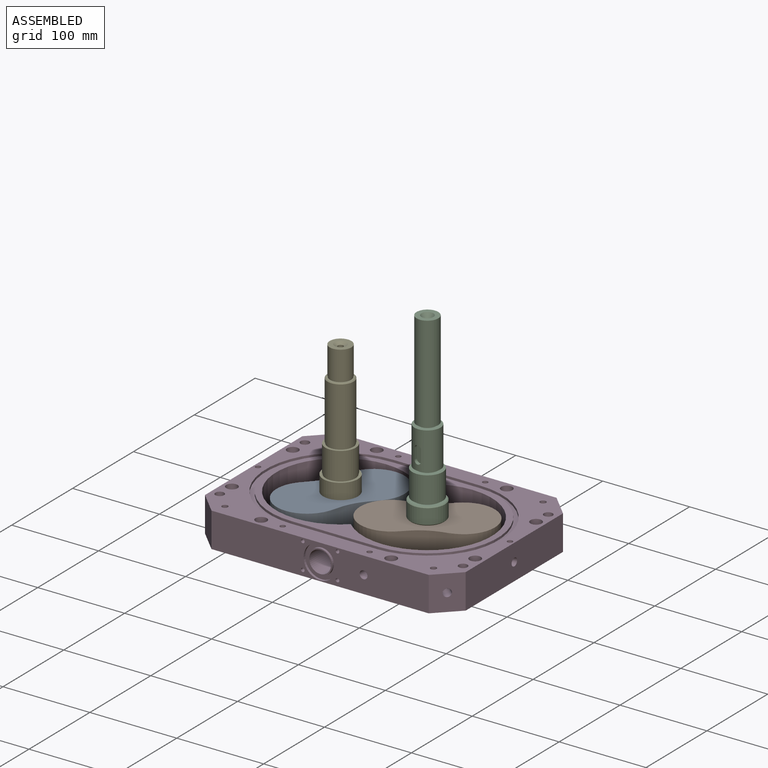
[diagram: assembled view]
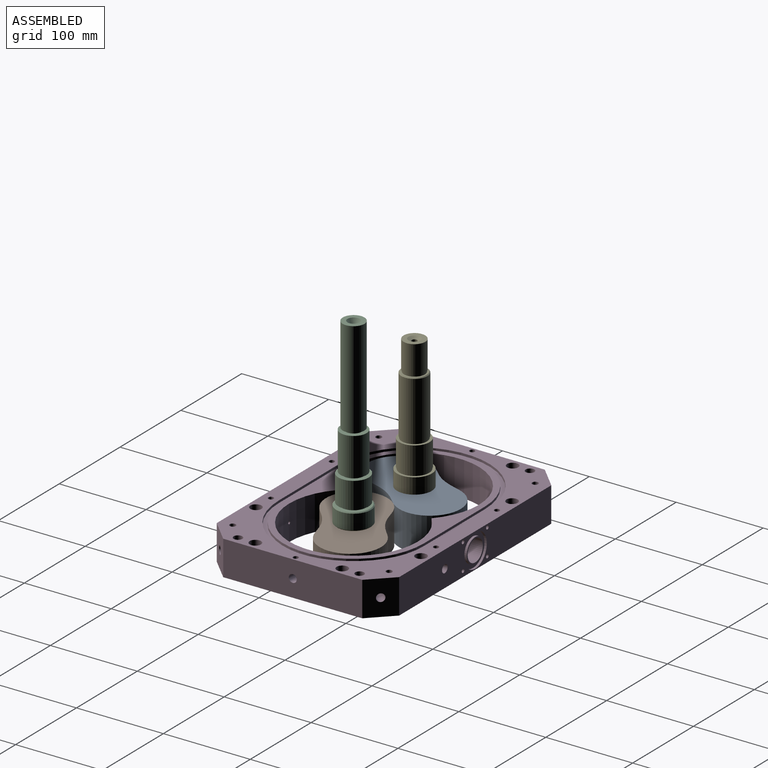
[diagram: assembled view, second angle]
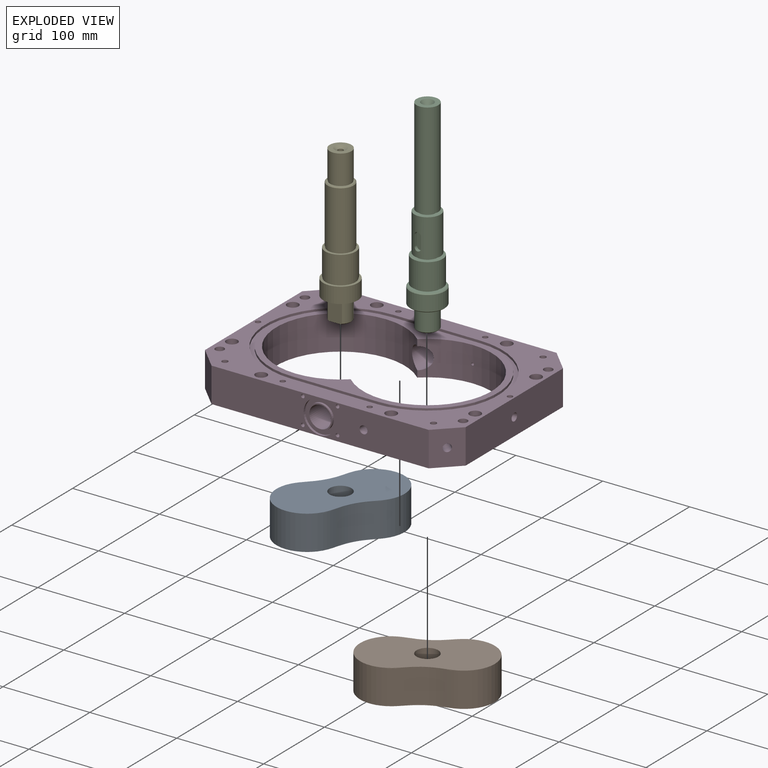
[diagram: exploded view]
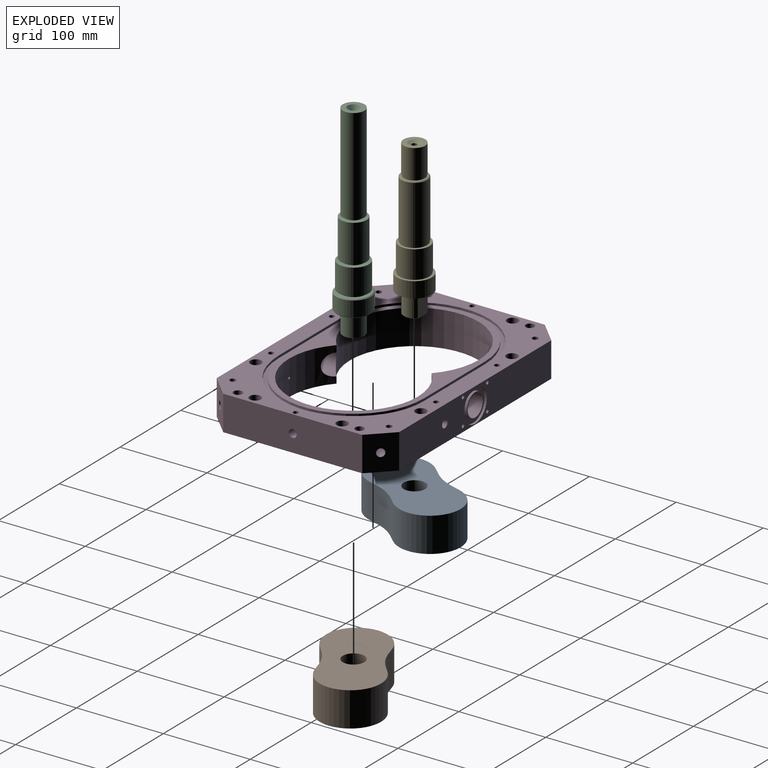
[diagram: exploded view, second angle]
ASSEMBLY  parts=5 mates=6
PART A: 11 faces, bbox 71x40x140.2 mm
  f0: cylinder r=12.5mm len=25mm, axis (0,1,0), area 1955.6mm2, adj f1,f2
  f1: plane 25x25mm, normal (0,-1,0), area 412.3mm2, adj f0,f3
  f2: plane 140.25x71.05mm, normal (0,-1,0), area 7945.2mm2, adj f0,f4,f5,f6,f7
  f3: cylinder r=5mm len=10mm, axis (0,1,0), area 153.9mm2, adj f1,f8
  f4: cylinder r=35.36mm len=70.71mm, axis (0,1,0), area 4366.9mm2, adj f2,f5,f7,f9
  f5: extruded ~70.68x39.8mm, area 2854.2mm2, adj f2,f4,f6,f9
  f6: cylinder r=35.36mm len=70.71mm, axis (0,1,0), area 4364.4mm2, adj f2,f5,f7,f9
  f7: extruded ~70.68x39.8mm, area 2854.2mm2, adj f2,f4,f6,f9
  f8: plane 20x20mm, normal (0,1,0), area 235.6mm2, adj f3,f10
  f9: plane 140.25x71.05mm, normal (0,1,0), area 8121.9mm2, adj f4,f5,f6,f7,f10
  f10: cylinder r=10mm len=20mm, axis (0,1,0), area 628.3mm2, adj f8,f9
PART B: same geometry as A
PART C: 33 faces, bbox 235x40x40 mm
  f0: cone r=0mm half-angle=27.5deg, axis (-1,0,0), area 78.7mm2, adj f1
  f1: cylinder r=3.4mm len=19.75mm, axis (-1,0,0), area 421.9mm2, adj f0,f2
  f2: plane 23x23mm, normal (-1,0,0), area 379.2mm2, adj f1,f3
  f3: cone r=0mm half-angle=45deg, axis (1,0,0), area 106.6mm2, adj f2,f4
  f4: cylinder r=12.5mm len=25mm, axis (-1,0,0), area 1727.9mm2, adj f3,f5
  f5: plane 25x25mm, normal (1,0,0), area 207.3mm2, adj f4,f6
  f6: cylinder r=9.5mm len=19mm, axis (-1,0,0), area 119.4mm2, adj f5,f7
  f7: plane 38x38mm, normal (-1,0,0), area 850.6mm2, adj f6,f8
  f8: cone r=0mm half-angle=45deg, axis (1,0,0), area 173.3mm2, adj f7,f9
  f9: cylinder r=20mm len=40mm, axis (-1,0,0), area 2199.1mm2, adj f8,f10
  f10: cone r=0mm half-angle=45deg, axis (-1,0,0), area 173.3mm2, adj f9,f12
  f11: cone r=0mm half-angle=59deg, axis (1,0,0), area 36.4mm2, adj f13,f14
  f12: plane 38x38mm, normal (1,0,0), area 473.6mm2, adj f10,f15
  f13: cylinder r=3.15mm len=6.3mm, axis (1,0,0), area 52.8mm2, adj f11,f14,f16
  f14: cylinder r=3.15mm len=6.3mm, axis (1,0,0), area 52.8mm2, adj f11,f13,f16
  f15: cylinder r=14.5mm len=29mm, axis (-1,0,0), area 182.2mm2, adj f12,f17
  f16: cone r=0mm half-angle=30deg, axis (1,0,0), area 245.5mm2, adj f13,f14,f18
  f17: plane 35x35mm, normal (-1,0,0), area 301.6mm2, adj f15,f19
  f18: plane 25x25mm, normal (1,0,0), area 336.9mm2, adj f16,f20
  f19: cylinder r=17.5mm len=35mm, axis (-1,0,0), area 3298.7mm2, adj f17,f21
  f20: cylinder r=12.5mm len=111mm, axis (-1,0,0), area 8717.9mm2, adj f18,f22
  f21: plane 35x35mm, normal (1,0,0), area 509.7mm2, adj f19,f23
  f22: plane 25x25mm, normal (-1,0,0), area 207.3mm2, adj f20,f24
  f23: cylinder r=12mm len=24mm, axis (-1,0,0), area 150.8mm2, adj f21,f26
  f24: cylinder r=9.5mm len=19mm, axis (-1,0,0), area 119.4mm2, adj f22,f27
  f25: plane 12x3.46mm, normal (0,0,1), area 41.5mm2, adj f28,f29,f30,f32
  f26: plane 30x30mm, normal (-1,0,0), area 254.5mm2, adj f23,f30
  f27: plane 30x30mm, normal (1,0,0), area 423.3mm2, adj f24,f30
  f28: cylinder r=4mm len=8mm, axis (0,-1,0), area 46.9mm2, adj f25,f29,f30,f31
  f29: plane 20x8mm, normal (0,-1,0), area 146.3mm2, adj f25,f28,f31,f32
  f30: cylinder r=15mm len=43.5mm, axis (-1,0,0), area 3951.9mm2, adj f25,f26,f27,f28,f31,f32
  f31: plane 12x3.46mm, normal (0,0,-1), area 41.5mm2, adj f28,f29,f30,f32
  f32: cylinder r=4mm len=8mm, axis (0,-1,0), area 46.9mm2, adj f25,f29,f30,f31
PART D: 123 faces, bbox 300x210x40 mm
  f0: plane 28x28mm, normal (0,-1,0), area 124.9mm2, adj f2,f4
  f1: plane 28x28mm, normal (0,1,0), area 124.9mm2, adj f3,f10
  f2: cylinder r=14mm len=28mm, axis (0,-1,0), area 237.5mm2, adj f0,f15
  f3: cylinder r=12.5mm len=50.34mm, axis (0,-1,0), area 3470.7mm2, adj f1,f5,f63
  f4: cylinder r=12.5mm len=50.34mm, axis (0,-1,0), area 3470.6mm2, adj f0,f5,f63
  f5: cylinder r=74.08mm len=148.16mm, axis (0,0,-1), area 13081.7mm2, adj f3,f4,f25,f27,f63
  f6: plane 100x2.7mm, normal (0,-1,0), area 270mm2, adj f7,f9,f25,f34
  f7: cylinder r=81mm len=162mm, axis (0,0,1), area 687.1mm2, adj f6,f8,f25,f34
  f8: plane 100x2.7mm, normal (0,1,0), area 270mm2, adj f7,f9,f25,f34
  f9: cylinder r=81mm len=162mm, axis (0,0,1), area 687.1mm2, adj f6,f8,f25,f34
  f10: cylinder r=14mm len=28mm, axis (0,1,0), area 237.5mm2, adj f1,f46
  f11: cone r=0mm half-angle=27.5deg, axis (0,-1,0), area 125.3mm2, adj f28,f47
  f12: cone r=0mm half-angle=59deg, axis (0,-1,0), area 16.2mm2, adj f48
  f13: cone r=0mm half-angle=59deg, axis (0,-1,0), area 16.2mm2, adj f49
  f14: cone r=0mm half-angle=59deg, axis (0,-1,0), area 16.2mm2, adj f50
  f15: plane 38x38mm, normal (0,-1,0), area 518.4mm2, adj f2,f51
  f16: cone r=0mm half-angle=59deg, axis (0,-1,0), area 16.2mm2, adj f52
  f17: cone r=0mm half-angle=27.5deg, axis (0.71,-0.71,0), area 62.7mm2, adj f18,f23,f53
  f18: cone r=0mm half-angle=27.5deg, axis (0.71,-0.71,0), area 62.7mm2, adj f17,f23,f53
  f19: plane 100x2.7mm, normal (0,-1,0), area 270mm2, adj f20,f22,f27,f62
  f20: cylinder r=81mm len=162mm, axis (0,0,-1), area 687.1mm2, adj f19,f21,f27,f62
  f21: plane 100x2.7mm, normal (0,1,0), area 270mm2, adj f20,f22,f27,f62
  f22: cylinder r=81mm len=162mm, axis (0,0,-1), area 687.1mm2, adj f19,f21,f27,f62
  f23: cylinder r=1.5mm len=28.65mm, axis (0.71,-0.71,0), area 352.9mm2, adj f17,f18,f63
  f24: cylinder r=1.5mm len=10.08mm, axis (1,0,0), area 95mm2, adj f29,f63
  f25: plane 262x162mm, normal (0,0,1), area 5973.5mm2, adj f5,f6,f7,f8,f9,f63
  f26: cylinder r=1.5mm len=15.08mm, axis (0,1,0), area 142.1mm2, adj f41,f63
  f27: plane 262x162mm, normal (0,0,-1), area 5973.5mm2, adj f5,f19,f20,f21,f22,f63
  f28: cylinder r=1.5mm len=15.08mm, axis (0,-1,0), area 142.1mm2, adj f11,f63
  f29: cone r=0mm half-angle=27.5deg, axis (1,0,0), area 125.3mm2, adj f24,f64
  f30: cone r=0mm half-angle=59deg, axis (0,0,1), area 42.4mm2, adj f73
  f31: cone r=0mm half-angle=59deg, axis (0,0,1), area 42.4mm2, adj f74
  f32: cone r=0mm half-angle=59deg, axis (0,0,1), area 42.4mm2, adj f75
  f33: cone r=0mm half-angle=59deg, axis (0,0,1), area 42.4mm2, adj f76
  f34: plane 272x172mm, normal (0,0,1), area 3623.2mm2, adj f6,f7,f8,f9,f77,f78,f79,f80
  f35: plane 6x6mm, normal (0,0,1), area 28.3mm2, adj f81
  f36: plane 6x6mm, normal (0,0,1), area 28.3mm2, adj f82
  f37: plane 6x6mm, normal (0,0,1), area 28.3mm2, adj f83
  f38: plane 6x6mm, normal (0,0,1), area 28.3mm2, adj f84
  f39: plane 6x6mm, normal (0,0,1), area 28.3mm2, adj f85
  f40: plane 6x6mm, normal (0,0,1), area 28.3mm2, adj f86
  f41: cone r=0mm half-angle=27.5deg, axis (0,1,0), area 125.3mm2, adj f26,f87
  f42: cone r=0mm half-angle=59deg, axis (0,1,0), area 16.2mm2, adj f88
  f43: cone r=0mm half-angle=59deg, axis (0,1,0), area 16.2mm2, adj f89
  f44: cone r=0mm half-angle=59deg, axis (0,1,0), area 16.2mm2, adj f90
  f45: cone r=0mm half-angle=59deg, axis (0,1,0), area 16.2mm2, adj f91
  f46: plane 38x38mm, normal (0,1,0), area 518.4mm2, adj f10,f92
  f47: cylinder r=4.55mm len=10mm, axis (0,-1,0), area 285.7mm2, adj f11,f96
  f48: cylinder r=2.1mm len=10mm, axis (0,-1,0), area 131.9mm2, adj f12,f96
  f49: cylinder r=2.1mm len=10mm, axis (0,-1,0), area 131.9mm2, adj f13,f96
  f50: cylinder r=2.1mm len=10mm, axis (0,-1,0), area 131.9mm2, adj f14,f96
  f51: cylinder r=19mm len=38mm, axis (0,-1,0), area 322.3mm2, adj f15,f96
  f52: cylinder r=2.1mm len=10mm, axis (0,-1,0), area 131.9mm2, adj f16,f96
  f53: cylinder r=4.55mm len=13.5mm, axis (0.71,-0.71,0), area 285.7mm2, adj f17,f18,f97
  f54: plane 13x13mm, normal (0,0,1), area 76mm2, adj f65,f102
  f55: plane 13x13mm, normal (0,0,1), area 76mm2, adj f66,f103
  f56: plane 13x13mm, normal (0,0,1), area 76mm2, adj f67,f104
  f57: plane 13x13mm, normal (0,0,1), area 76mm2, adj f68,f105
  f58: plane 13x13mm, normal (0,0,1), area 76mm2, adj f69,f106
  f59: plane 13x13mm, normal (0,0,1), area 76mm2, adj f70,f107
  f60: plane 13x13mm, normal (0,0,1), area 76mm2, adj f71,f108
  f61: plane 13x13mm, normal (0,0,1), area 76mm2, adj f72,f109
  f62: plane 272x172mm, normal (0,0,-1), area 3623.2mm2, adj f19,f20,f21,f22,f110,f111,f112,f113
  f63: cylinder r=74.08mm len=148.16mm, axis (0,0,-1), area 13046.4mm2, adj f3,f4,f5,f23,f24,f25,f26,f27
  f64: cylinder r=4.55mm len=10mm, axis (1,0,0), area 285.7mm2, adj f29,f115
  f65: cylinder r=6.5mm len=20mm, axis (0,0,1), area 816.8mm2, adj f54,f116
  f66: cylinder r=6.5mm len=20mm, axis (0,0,1), area 816.8mm2, adj f55,f116
  f67: cylinder r=6.5mm len=20mm, axis (0,0,1), area 816.8mm2, adj f56,f116
  f68: cylinder r=6.5mm len=20mm, axis (0,0,1), area 816.8mm2, adj f57,f116
  f69: cylinder r=6.5mm len=20mm, axis (0,0,1), area 816.8mm2, adj f58,f116
  f70: cylinder r=6.5mm len=20mm, axis (0,0,1), area 816.8mm2, adj f59,f116
  f71: cylinder r=6.5mm len=20mm, axis (0,0,1), area 816.8mm2, adj f60,f116
  f72: cylinder r=6.5mm len=20mm, axis (0,0,1), area 816.8mm2, adj f61,f116
  f73: cylinder r=3.4mm len=16mm, axis (0,0,1), area 341.8mm2, adj f30,f116
  f74: cylinder r=3.4mm len=16mm, axis (0,0,1), area 341.8mm2, adj f31,f116
  f75: cylinder r=3.4mm len=16mm, axis (0,0,1), area 341.8mm2, adj f32,f116
  f76: cylinder r=3.4mm len=16mm, axis (0,0,1), area 341.8mm2, adj f33,f116
  f77: cylinder r=86mm len=172mm, axis (0,0,1), area 729.5mm2, adj f34,f78,f80,f116
  f78: plane 100x2.7mm, normal (0,-1,0), area 270mm2, adj f34,f77,f79,f116
  f79: cylinder r=86mm len=172mm, axis (0,0,1), area 729.5mm2, adj f34,f78,f80,f116
  f80: plane 100x2.7mm, normal (0,1,0), area 270mm2, adj f34,f77,f79,f116
  f81: cylinder r=3mm len=10mm, axis (0,0,1), area 188.5mm2, adj f35,f116
  f82: cylinder r=3mm len=10mm, axis (0,0,1), area 188.5mm2, adj f36,f116
  f83: cylinder r=3mm len=10mm, axis (0,0,1), area 188.5mm2, adj f37,f116
  f84: cylinder r=3mm len=10mm, axis (0,0,1), area 188.5mm2, adj f38,f116
  f85: cylinder r=3mm len=10mm, axis (0,0,1), area 188.5mm2, adj f39,f116
  f86: cylinder r=3mm len=10mm, axis (0,0,1), area 188.5mm2, adj f40,f116
  f87: cylinder r=4.55mm len=10mm, axis (0,1,0), area 285.7mm2, adj f41,f117
  f88: cylinder r=2.1mm len=10mm, axis (0,1,0), area 131.9mm2, adj f42,f117
  f89: cylinder r=2.1mm len=10mm, axis (0,1,0), area 131.9mm2, adj f43,f117
  f90: cylinder r=2.1mm len=10mm, axis (0,1,0), area 131.9mm2, adj f44,f117
  f91: cylinder r=2.1mm len=10mm, axis (0,1,0), area 131.9mm2, adj f45,f117
  f92: cylinder r=19mm len=38mm, axis (0,1,0), area 322.3mm2, adj f46,f117
  f93: plane 40x25mm, normal (-0.71,0.71,0), area 1414.2mm2, adj f94,f116,f117,f118
  f94: plane 160x40mm, normal (-1,0,0), area 6400mm2, adj f93,f95,f116,f118
  f95: plane 40x25mm, normal (-0.71,-0.71,0), area 1414.2mm2, adj f94,f96,f116,f118
  f96: plane 250x40mm, normal (0,-1,0), area 8745.5mm2, adj f47,f48,f49,f50,f51,f52,f95,f97
  f97: plane 40x25mm, normal (0.71,-0.71,0), area 1349.3mm2, adj f53,f96,f115,f116,f118
  f98: cylinder r=5mm len=40mm, axis (0,0,1), area 1256.6mm2, adj f116,f118
  f99: cylinder r=5mm len=40mm, axis (0,0,1), area 1256.6mm2, adj f116,f118
  f100: cylinder r=5mm len=40mm, axis (0,0,1), area 1256.6mm2, adj f116,f118
  f101: cylinder r=5mm len=40mm, axis (0,0,1), area 1256.6mm2, adj f116,f118
  f102: cylinder r=4.25mm len=20mm, axis (0,0,1), area 534.1mm2, adj f54,f118
  f103: cylinder r=4.25mm len=20mm, axis (0,0,1), area 534.1mm2, adj f55,f118
  f104: cylinder r=4.25mm len=20mm, axis (0,0,1), area 534.1mm2, adj f56,f118
  f105: cylinder r=4.25mm len=20mm, axis (0,0,1), area 534.1mm2, adj f57,f118
  f106: cylinder r=4.25mm len=20mm, axis (0,0,1), area 534.1mm2, adj f58,f118
  f107: cylinder r=4.25mm len=20mm, axis (0,0,1), area 534.1mm2, adj f59,f118
  f108: cylinder r=4.25mm len=20mm, axis (0,0,1), area 534.1mm2, adj f60,f118
  f109: cylinder r=4.25mm len=20mm, axis (0,0,1), area 534.1mm2, adj f61,f118
  f110: cylinder r=86mm len=172mm, axis (0,0,-1), area 729.5mm2, adj f62,f111,f113,f118
  f111: plane 100x2.7mm, normal (0,1,0), area 270mm2, adj f62,f110,f112,f118
  f112: cylinder r=86mm len=172mm, axis (0,0,-1), area 729.5mm2, adj f62,f111,f113,f118
  f113: plane 100x2.7mm, normal (0,-1,0), area 270mm2, adj f62,f110,f112,f118
  f114: cylinder r=1.5mm len=28.65mm, axis (0.71,0.71,0), area 352.9mm2, adj f63,f119
  f115: plane 160x40mm, normal (1,0,0), area 6335.1mm2, adj f64,f97,f116,f118,f120
  f116: plane 300x210mm, normal (0,0,1), area 19623.8mm2, adj f65,f66,f67,f68,f69,f70,f71,f72
  f117: plane 250x40mm, normal (0,1,0), area 8745.5mm2, adj f87,f88,f89,f90,f91,f92,f93,f116
  f118: plane 300x210mm, normal (0,0,-1), area 20546.7mm2, adj f93,f94,f95,f96,f97,f98,f99,f100
  f119: cone r=0mm half-angle=27.5deg, axis (0.71,0.71,0), area 125.3mm2, adj f114,f121,f122
  f120: plane 40x25mm, normal (0.71,0.71,0), area 1349.3mm2, adj f115,f116,f117,f118,f121,f122
  f121: cylinder r=4.55mm len=13.5mm, axis (0.71,0.71,0), area 142.8mm2, adj f119,f120,f122
  f122: cylinder r=4.55mm len=13.5mm, axis (0.71,0.71,0), area 142.8mm2, adj f119,f120,f121
PART E: 33 faces, bbox 178x40x40 mm
  f0: cone r=0mm half-angle=59deg, axis (1,0,0), area 42.4mm2, adj f1
  f1: cylinder r=3.4mm len=19.75mm, axis (1,0,0), area 421.9mm2, adj f0,f5
  f2: plane 19x5.17mm, normal (-1,0,0), area 10.9mm2, adj f3,f9,f10,f12
  f3: cylinder r=12.5mm len=22mm, axis (-1,0,0), area 474.8mm2, adj f2,f4,f10,f12
  f4: cone r=0mm half-angle=45deg, axis (-1,0,0), area 31mm2, adj f3,f5,f10,f12
  f5: plane 23x19mm, normal (1,0,0), area 343.9mm2, adj f1,f4,f6,f10,f12
  f6: cone r=0mm half-angle=45deg, axis (-1,0,0), area 31mm2, adj f5,f7,f10,f12
  f7: cylinder r=12.5mm len=22mm, axis (-1,0,0), area 474.8mm2, adj f6,f8,f10,f12
  f8: plane 19x5.17mm, normal (-1,0,0), area 10.9mm2, adj f7,f10,f11,f12
  f9: cylinder r=12mm len=19mm, axis (-1,0,0), area 43.8mm2, adj f2,f10,f12,f13
  f10: plane 25x16.25mm, normal (0,1,0), area 401.4mm2, adj f2,f3,f4,f5,f6,f7,f8,f9
  f11: cylinder r=12mm len=19mm, axis (-1,0,0), area 43.8mm2, adj f8,f10,f12,f13
  f12: plane 25x16.25mm, normal (0,-1,0), area 401.4mm2, adj f2,f3,f4,f5,f6,f7,f8,f9
  f13: plane 40x40mm, normal (1,0,0), area 854.2mm2, adj f9,f10,f11,f12,f14
  f14: cylinder r=20mm len=40mm, axis (-1,0,0), area 2261.9mm2, adj f13,f15
  f15: plane 40x40mm, normal (-1,0,0), area 348.7mm2, adj f14,f17
  f16: cone r=0mm half-angle=59deg, axis (-1,0,0), area 36.4mm2, adj f18,f19
  f17: cylinder r=17mm len=34mm, axis (-1,0,0), area 213.6mm2, adj f15,f20
  f18: cylinder r=3.15mm len=9.78mm, axis (-1,0,0), area 96.8mm2, adj f16,f19,f21
  f19: cylinder r=3.15mm len=9.78mm, axis (-1,0,0), area 96.8mm2, adj f16,f18,f21
  f20: plane 35x35mm, normal (1,0,0), area 54.2mm2, adj f17,f22
  f21: cone r=0mm half-angle=60deg, axis (-1,0,0), area 141.8mm2, adj f18,f19,f23
  f22: cylinder r=17.5mm len=35mm, axis (-1,0,0), area 3298.7mm2, adj f20,f24
  f23: plane 25x25mm, normal (-1,0,0), area 336.9mm2, adj f21,f25
  f24: plane 35x35mm, normal (-1,0,0), area 301.6mm2, adj f22,f26
  f25: cylinder r=12.5mm len=32mm, axis (-1,0,0), area 2513.3mm2, adj f23,f27
  f26: cylinder r=14.5mm len=29mm, axis (-1,0,0), area 182.2mm2, adj f24,f28
  f27: plane 25x25mm, normal (1,0,0), area 38.5mm2, adj f25,f29
  f28: plane 30x30mm, normal (1,0,0), area 46.3mm2, adj f26,f30
  f29: cylinder r=12mm len=24mm, axis (-1,0,0), area 150.8mm2, adj f27,f31
  f30: cylinder r=15mm len=66mm, axis (-1,0,0), area 6220.4mm2, adj f28,f32
  f31: plane 28x28mm, normal (-1,0,0), area 163.4mm2, adj f29,f32
  f32: cone r=0mm half-angle=45deg, axis (1,0,0), area 128.8mm2, adj f30,f31
PLACE A rot(axis=(-0.19,-0.69,0.69),158.9deg) t=(-57.56,8.62,-6.37)mm
PLACE B rot(axis=(-0.77,0.45,-0.45),104.5deg) t=(42.44,8.62,-6.37)mm
PLACE C rot(axis=(-0.03,-1,-0.03),90.1deg) t=(42.44,8.62,108.43)mm
PLACE D t=(-7.56,8.62,-6.57)mm fixed
PLACE E rot(axis=(0,1,0),90deg) t=(-57.56,8.62,186.53)mm
MATE revolute C.f0 <-> B.f0  axis (0,0,-1) through (42.44,8.62,33.43)mm
MATE revolute B.f0 <-> D.f9  axis (0,0,-1) through (42.44,8.62,33.43)mm
MATE revolute E.f0 <-> A.f0  axis (0,0,-1) through (-57.56,8.62,8.53)mm
MATE cylindrical A.f0 <-> D.f5  axis (0,0,1) through (-57.56,8.62,33.43)mm
MATE revolute A.f0 <-> D.f5  axis (0,0,1) through (-57.56,8.62,33.43)mm
MATE cylindrical B.f0 <-> D.f9  axis (0,0,1) through (42.44,8.62,33.43)mm
